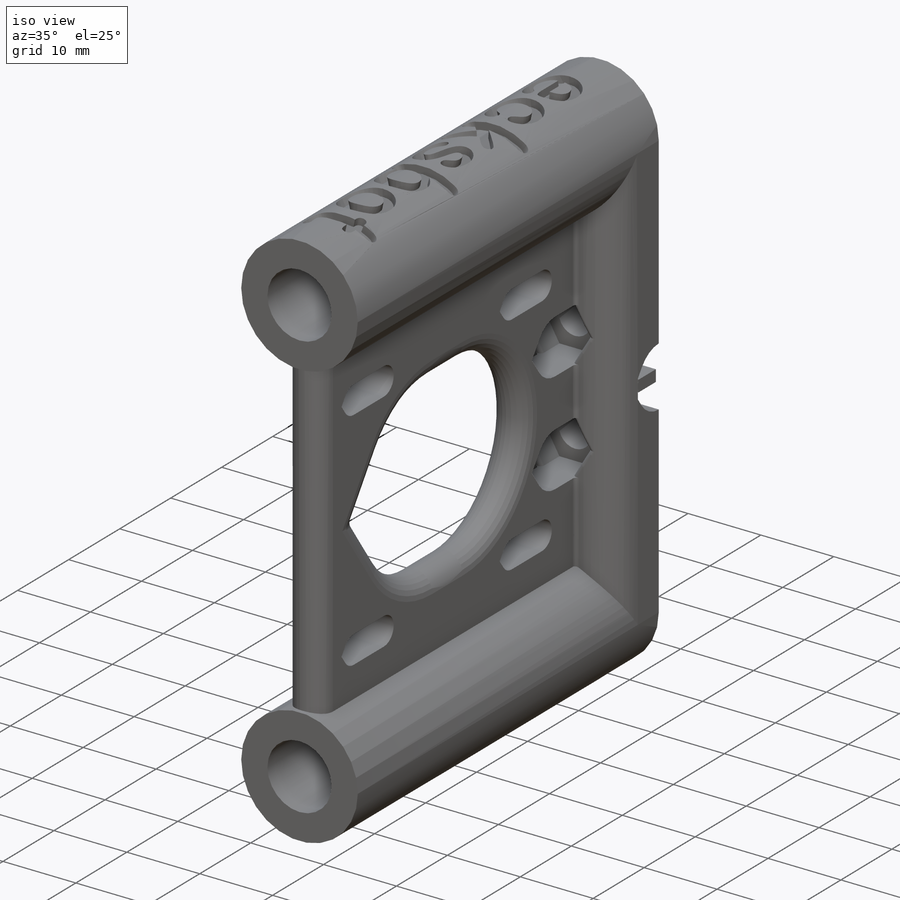
[diagram: iso view]
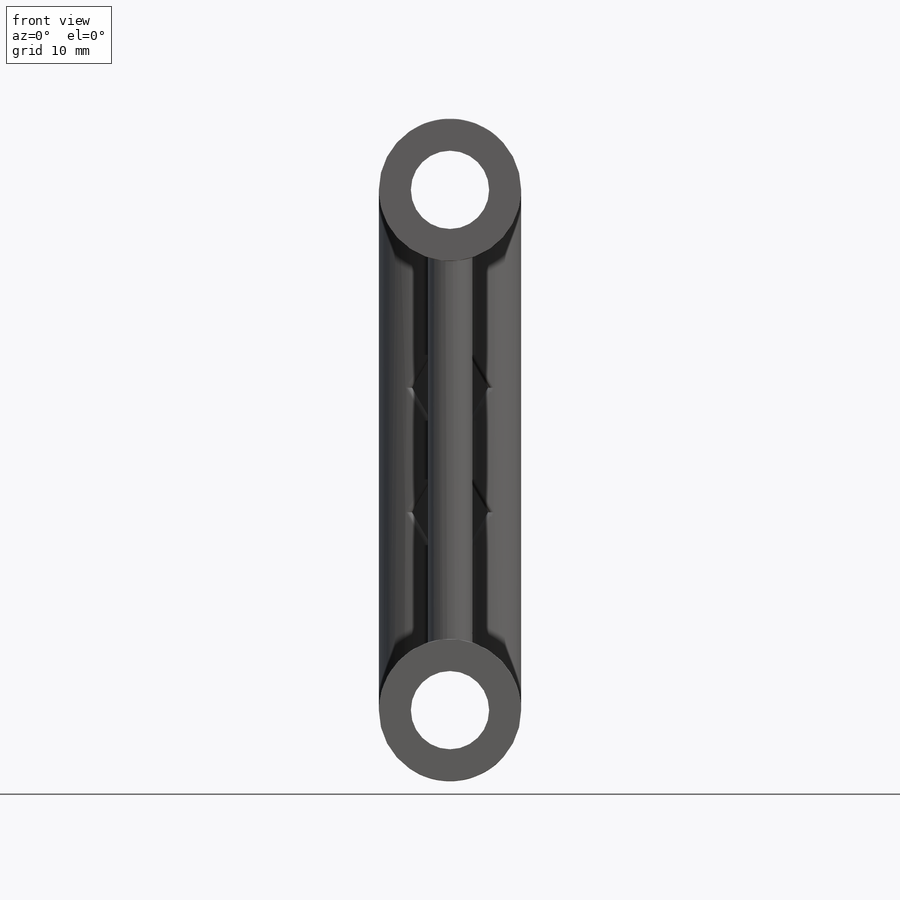
[diagram: front view]
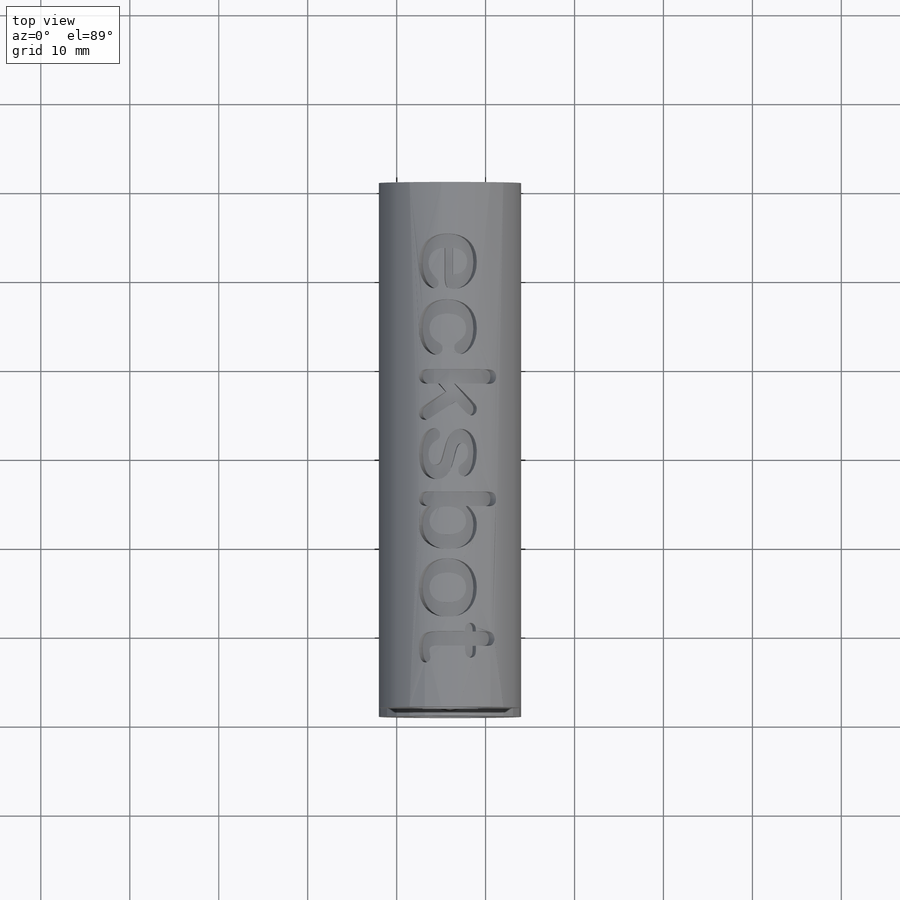
[diagram: top view]
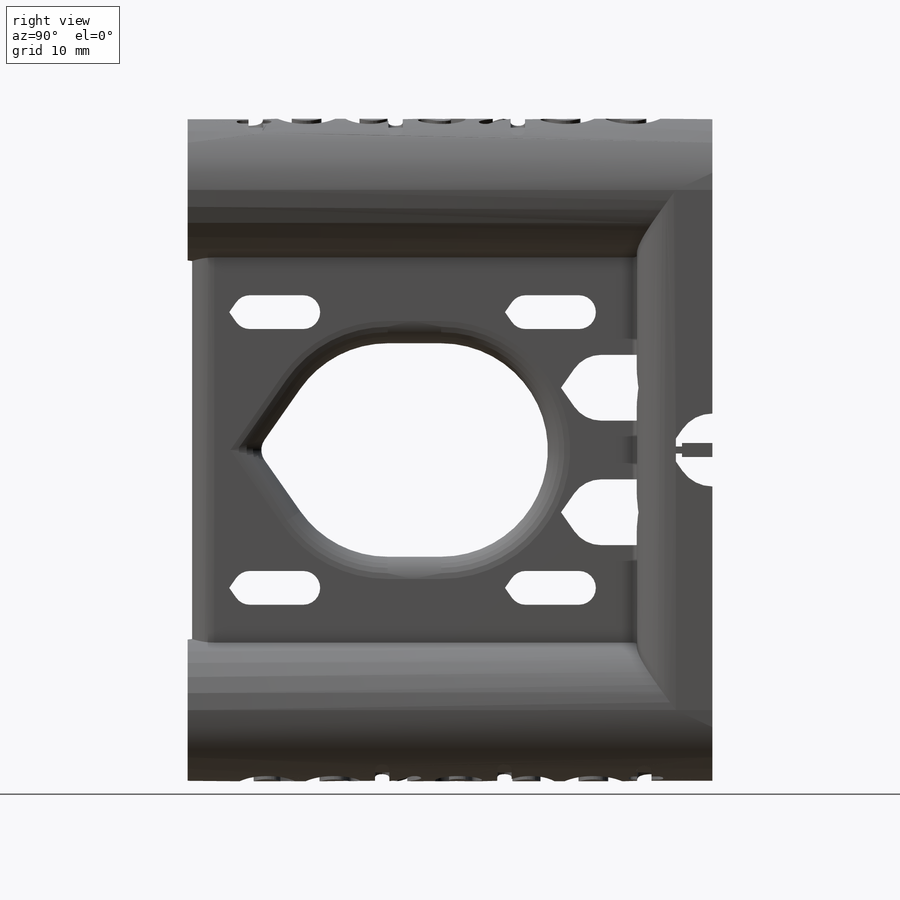
[diagram: right view]
SOLIDWORKS PART (.sldprt)
format: sldprt  version: not decoded by parser v0  size: 2,115,584 bytes
history: native  units: mm
features: sketch x15, cut_extrude x10, fillet x6, extrude x3, plane x2, material x1 (+11 scaffold rows collapsed)
feature tree (48):
  scaffold x11  (default folders/planes/origin — collapsed)
  material  "Material <not specified>"
  sketch  "Sketch1"  dims[c1.D1=10.0mm c1.D2=16.0mm c2.D1=37.75mm c2.D3=37.75mm]
  extrude  "Boss-Extrude1"  Depth=59mm
  sketch  "Sketch3"  dims[D3=~3.076298mm D1=29.25mm D2=29.25mm]
  cut_extrude  "Cut-Extrude1"  [1 undecoded]
  sketch  "Sketch4"  dims[D1=0.0mm]
  cut_extrude  "Cut-Extrude2"  [1 undecoded]
  sketch  "Sketch7"  dims[c1.D1=~6.032992mm c2.D1=35.0deg]
  cut_extrude  "Cut-Extrude3"  [1 undecoded]
  sketch  "Sketch10"  dims[c1.D4=12.0mm c1.D1=21.5mm c1.D2=21.5mm c1.D3=10.0mm c2.D1=0.5mm c2.D2=0.5mm]
  sketch  "Sketch11"  dims[c1.D1=~39.288605mm c1.D3=11.75mm c1.D9=~1.317443mm c1.D13=1.9mm c1.D15=12.0mm c2.D1=33.5mm c2.D9=~1.591825mm c3.D9=35.0deg c4.D9=~1.517174mm c5.D9=35.0deg c5.D10=~1.590221mm c6.D10=35.0deg c6.D11=~2.563156mm c7.D11=35.0deg c7.D12=~2.915576mm c8.D12=35.0deg c8.D14=~9.294096mm c9.D14=35.0deg c9.D1=3.0mm c9.D2=3.0mm c9.D3=15.5mm c9.D4=15.5mm c9.D5=15.5mm c9.D6=15.5mm c9.D7=15.5mm c9.D8=15.5mm]
  cut_extrude  "Cut-Extrude4"  [1 undecoded]
  cut_extrude  "Cut-Extrude5"  Depth=50.5mm
  sketch  "Sketch17"  dims[D1=8.0mm D2=7.0mm]
  cut_extrude  "Cut-Extrude7"  [1 undecoded]
  sketch  "Sketch18"  dims[c1.D1=7.4mm c1.D2=7.4mm c1.D3=43.0mm c2.D3=0.0deg c3.D3=~4.272392mm c4.D3=30.0deg c4.D4=~4.272392mm c5.D4=30.0deg]
  cut_extrude  "Cut-Extrude8"  Depth=3.5mm
  sketch  "Sketch27"
  cut_extrude  "Cut-Extrude13"  [1 undecoded]
  sketch  "Sketch22"  dims[c1.D1=7.4mm c1.D2=7.4mm c1.D3=7.4mm c1.D4=7.4mm c1.D5=7.4mm c2.D1=~3.564918mm c3.D1=35.0deg c3.D2=~4.704841mm c4.D2=35.0deg c4.D1=5.0mm c4.D4=5.0mm c4.D5=22.25mm c5.D1=~2.858095mm c6.D1=35.0deg c6.D2=~3.317706mm c7.D2=35.0deg c7.D1=4.0mm c8.D2=4.0mm]
  cut_extrude  "Cut-Extrude9"  Depth=10mm
  fillet  "Fillet4"  Radius=4.4mm
  plane  "Plane1"
  sketch  "Sketch23"  dims[c1.D1=4.5mm c1.D2=~27.746696mm c2.D1=3.0mm c3.D1=1.0mm]
  plane  "Plane2"
  sketch  "Sketch24"  dims[c1.D1=0.0mm c1.D2=0.0mm c1.D3=0.0mm c2.D1=1.0mm]
  sketch  "Sketch26"  dims[D1=0.0mm]
  cut_extrude  "Cut-Extrude12"  Depth=0.5mm
  fillet  "Fillet12"  [1 undecoded]
  fillet  "Fillet15"  Radius=2.5mm
  fillet  "Fillet16"  Radius=2mm
  fillet  "Fillet17"  Radius=0.5mm
  fillet  "Fillet18"  Radius=0.5mm
  sketch  "Sketch28"  dims[c1.D1=0.3978mm c1.D2=0.3978mm c2.D1=0.3978mm c2.D2=0.3978mm]
  extrude  "Boss-Extrude3"  Depth=0.68mm
  sketch  "Sketch29"  dims[D1=0.7888mm D2=0.7888mm]
  extrude  "Boss-Extrude4"  [1 undecoded]
decode coverage: 25 of 34 modeling features carry decoded parameters
note: ~ marks probable driven/reference dimensions
note: 8 parameter values undecoded
summary: no parameter record found for 8 features
note: suppression state not decoded; provenance and decode notes live in map.json
